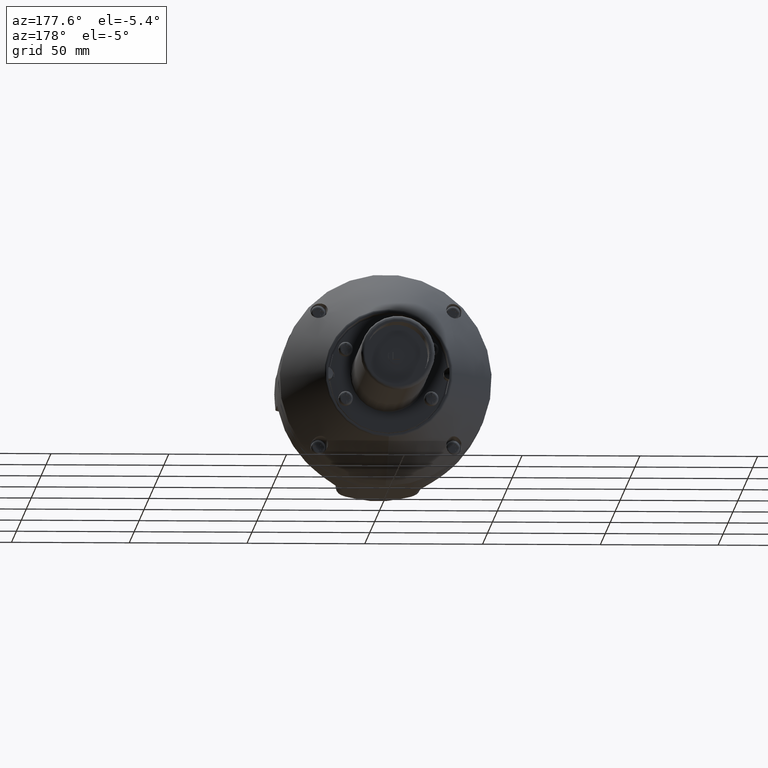
[diagram: clean part render]
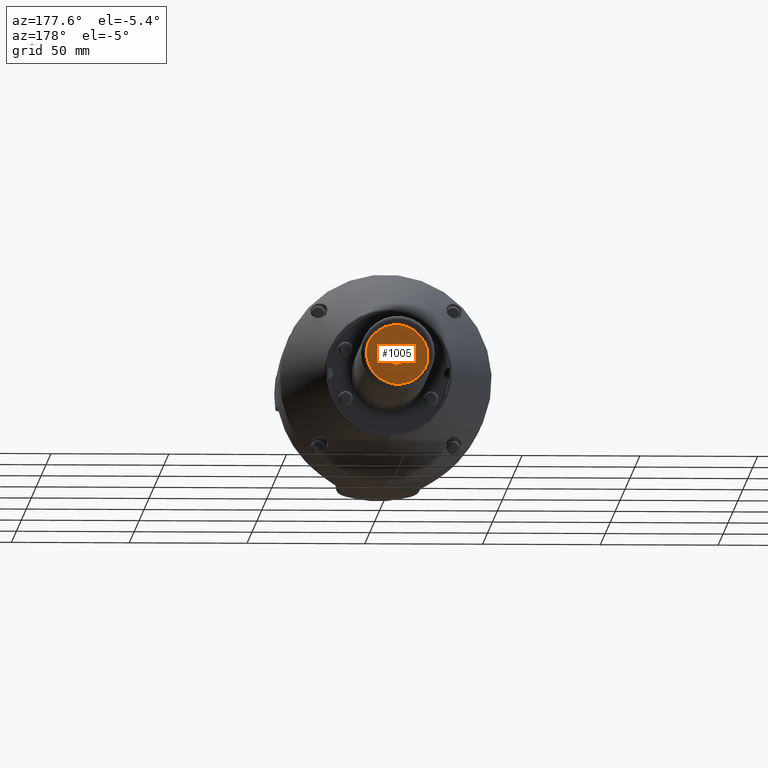
[diagram: same view with one face highlighted and labeled with its STEP entity id]
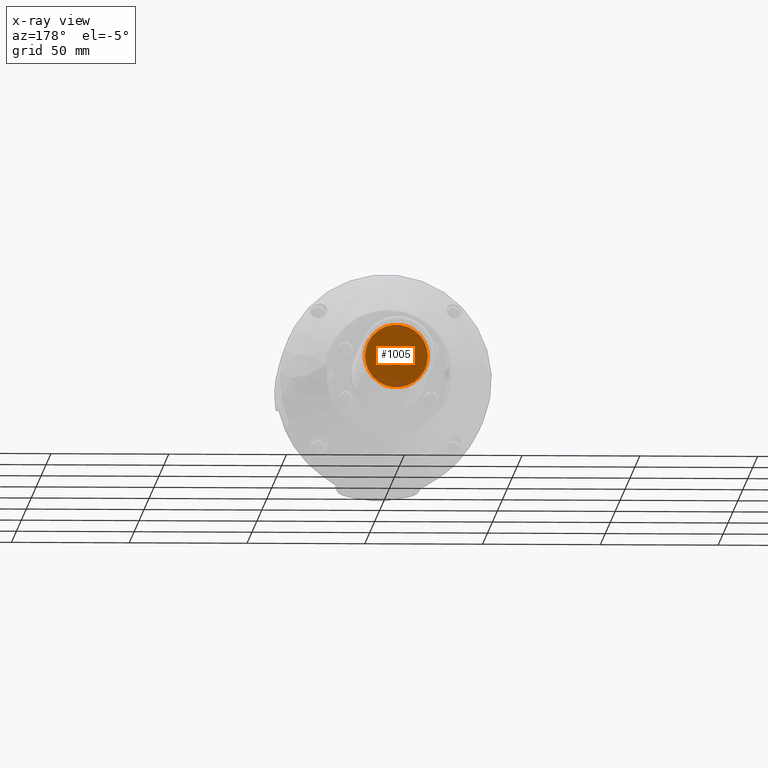
[diagram: x-ray of the same camera — body ghosted, the highlighted face saturated]
A machine part, auxiliary view. The second image highlights one B-rep face of the part: STEP entity #1005.
The next image is the same camera in x-ray: the body ghosted, the highlighted face saturated — about 0% of this face is hidden behind the body in this view.
In plain terms, the highlighted planar face has unit normal (-0, 1, 0).
Its self-contained STEP definition (entity closure, byte-faithful):
#1005 = ADVANCED_FACE( '', ( #2523, #2524 ), #2525, .T. );
#2523 = FACE_OUTER_BOUND( '', #5452, .T. );
#2524 = FACE_BOUND( '', #5453, .T. );
#2525 = PLANE( '', #5454 );
#5452 = EDGE_LOOP( '', ( #12134 ) );
#5453 = EDGE_LOOP( '', ( #12135 ) );
#5454 = AXIS2_PLACEMENT_3D( '', #12136, #12137, #12138 );
#12134 = ORIENTED_EDGE( '', *, *, #17488, .F. );
#12135 = ORIENTED_EDGE( '', *, *, #17489, .T. );
#12136 = CARTESIAN_POINT( '', ( -4.12083423954694E-011, 120.600000000000, -4.11696697720020E-011 ) );
#12137 = DIRECTION( '', ( -0.000000000000000, 1.00000000000000, 0.000000000000000 ) );
#12138 = DIRECTION( '', ( 1.00000000000000, 0.000000000000000, 0.000000000000000 ) );
#17488 = EDGE_CURVE( '', #20552, #20552, #20553, .T. );
#17489 = EDGE_CURVE( '', #20554, #20554, #20555, .T. );
#20552 = VERTEX_POINT( '', #25411 );
#20553 = CIRCLE( '', #25412, 13.3500000000000 );
#20554 = VERTEX_POINT( '', #25413 );
#20555 = CIRCLE( '', #25414, 3.50000000000124 );
#25411 = CARTESIAN_POINT( '', ( -13.3500000000412, 120.600000000000, -2.19394124823281E-011 ) );
#25412 = AXIS2_PLACEMENT_3D( '', #30682, #30683, #30684 );
#25413 = CARTESIAN_POINT( '', ( -4.12032148085440E-011, 120.600000000000, 3.49999999996015 ) );
#25414 = AXIS2_PLACEMENT_3D( '', #30685, #30686, #30687 );
#30682 = CARTESIAN_POINT( '', ( -4.12083423954694E-011, 120.600000000000, -4.11696697720020E-011 ) );
#30683 = DIRECTION( '', ( 0.000000000000000, -1.00000000000000, 0.000000000000000 ) );
#30684 = DIRECTION( '', ( -1.00000000000000, 0.000000000000000, 1.44046871083700E-012 ) );
#30685 = CARTESIAN_POINT( '', ( -4.12032148085440E-011, 120.600000000000, -4.10865830433066E-011 ) );
#30686 = DIRECTION( '', ( 0.000000000000000, -1.00000000000000, 0.000000000000000 ) );
#30687 = DIRECTION( '', ( 0.000000000000000, 0.000000000000000, 1.00000000000000 ) );